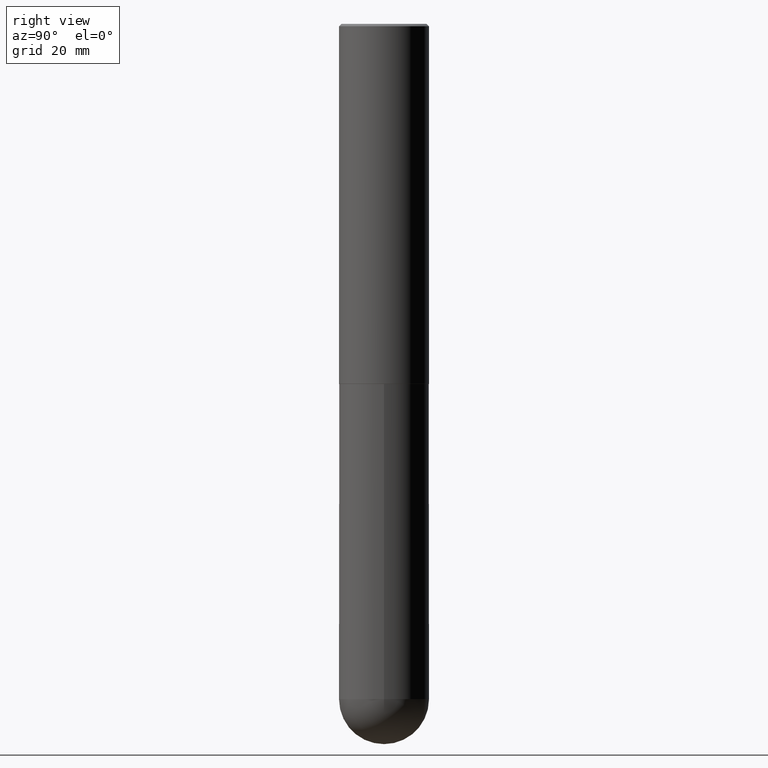
[diagram: clean part render]
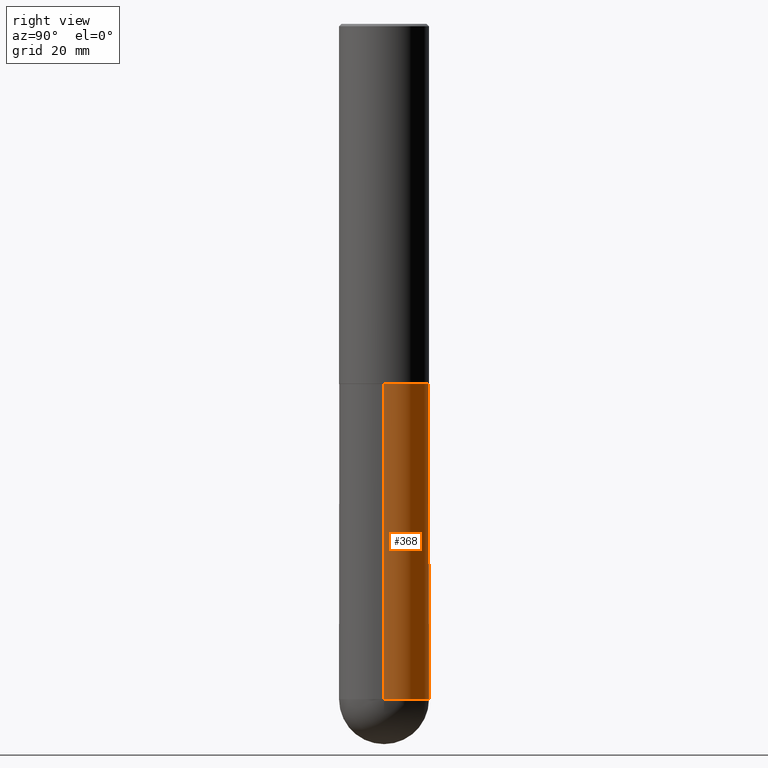
[diagram: same view with one face highlighted and labeled with its STEP entity id]
A machine part, right view. The second image highlights one B-rep face of the part: STEP entity #368.
In plain terms, the highlighted cylindrical surface (partial cylindrical patch) has radius 9.525 mm, axis along (-0, 0, 1).
Its self-contained STEP definition (entity closure, byte-faithful):
#2 = CARTESIAN_POINT ( 'NONE',  ( 0.3750000000000001110, -1.767562427789342178E-14, -5.625000000000000000 ) ) ;
#5 = VERTEX_POINT ( 'NONE', #10 ) ;
#10 = CARTESIAN_POINT ( 'NONE',  ( 2.618611004132489250E-15, 0.3749999999999805711, -5.625000000000000888 ) ) ;
#13 = DIRECTION ( 'NONE',  ( -2.445468806185136597E-29, 3.491481338843145583E-15, 1.000000000000000000 ) ) ;
#27 = AXIS2_PLACEMENT_3D ( 'NONE', #107, #82, #138 ) ;
#48 = FACE_OUTER_BOUND ( 'NONE', #412, .T. ) ;
#49 = EDGE_CURVE ( 'NONE', #5, #68, #400, .T. ) ;
#55 = DIRECTION ( 'NONE',  ( -2.445468806185136597E-29, 3.491481338843145583E-15, 1.000000000000000000 ) ) ;
#68 = VERTEX_POINT ( 'NONE', #327 ) ;
#74 = DIRECTION ( 'NONE',  ( 1.000000000000000000, -6.982962677686265922E-15, 4.876176775795935793E-29 ) ) ;
#76 = VECTOR ( 'NONE', #383, 39.37007874015748143 ) ;
#80 = CARTESIAN_POINT ( 'NONE',  ( 1.375576203479139336E-28, -1.963958253099269612E-14, -5.625000000000000000 ) ) ;
#81 = CARTESIAN_POINT ( 'NONE',  ( -0.3750000000000000555, -1.239247801466068975E-14, -3.000000000000000444 ) ) ;
#82 = DIRECTION ( 'NONE',  ( -2.445468806185136597E-29, 3.491481338843145583E-15, 1.000000000000000000 ) ) ;
#98 = ORIENTED_EDGE ( 'NONE', *, *, #374, .T. ) ;
#106 = LINE ( 'NONE', #286, #366 ) ;
#107 = CARTESIAN_POINT ( 'NONE',  ( 7.336406418555409790E-29, -1.047444401652943635E-14, -3.000000000000000444 ) ) ;
#108 = EDGE_CURVE ( 'NONE', #123, #378, #196, .T. ) ;
#123 = VERTEX_POINT ( 'NONE', #320 ) ;
#135 = CIRCLE ( 'NONE', #336, 0.3750000000000001110 ) ;
#138 = DIRECTION ( 'NONE',  ( 1.000000000000000000, -6.982962677686266711E-15, 0.000000000000000000 ) ) ;
#149 = ORIENTED_EDGE ( 'NONE', *, *, #49, .T. ) ;
#168 = CYLINDRICAL_SURFACE ( 'NONE', #376, 0.3750000000000001110 ) ;
#172 = DIRECTION ( 'NONE',  ( 1.000000000000000000, -6.982962677686270655E-15, 0.000000000000000000 ) ) ;
#184 = DIRECTION ( 'NONE',  ( -2.445468806185136597E-29, 3.491481338843145583E-15, 1.000000000000000000 ) ) ;
#195 = DIRECTION ( 'NONE',  ( -2.445468806185136877E-29, 3.491481338843145188E-15, 1.000000000000000000 ) ) ;
#196 = CIRCLE ( 'NONE', #27, 0.3750000000000000555 ) ;
#209 = ORIENTED_EDGE ( 'NONE', *, *, #213, .F. ) ;
#213 = EDGE_CURVE ( 'NONE', #267, #123, #347, .T. ) ;
#252 = ORIENTED_EDGE ( 'NONE', *, *, #361, .T. ) ;
#267 = VERTEX_POINT ( 'NONE', #2 ) ;
#286 = CARTESIAN_POINT ( 'NONE',  ( -0.3750000000000001110, 2.664535259100376486E-15, -1.844600658845590159E-29 ) ) ;
#294 = AXIS2_PLACEMENT_3D ( 'NONE', #80, #184, #387 ) ;
#306 = ORIENTED_EDGE ( 'NONE', *, *, #108, .F. ) ;
#320 = CARTESIAN_POINT ( 'NONE',  ( 0.3750000000000000555, -1.309305502066178795E-14, -3.000000000000000444 ) ) ;
#321 = CARTESIAN_POINT ( 'NONE',  ( 1.375576203479139336E-28, -1.963958253099269612E-14, -5.625000000000000000 ) ) ;
#327 = CARTESIAN_POINT ( 'NONE',  ( -0.3750000000000001110, -1.239247801466069291E-14, -5.625000000000000000 ) ) ;
#329 = CARTESIAN_POINT ( 'NONE',  ( 0.000000000000000000, 0.000000000000000000, 0.000000000000000000 ) ) ;
#336 = AXIS2_PLACEMENT_3D ( 'NONE', #321, #55, #172 ) ;
#347 = LINE ( 'NONE', #375, #76 ) ;
#361 = EDGE_CURVE ( 'NONE', #68, #378, #106, .T. ) ;
#366 = VECTOR ( 'NONE', #195, 39.37007874015748143 ) ;
#368 = ADVANCED_FACE ( 'NONE', ( #48 ), #168, .T. ) ;
#374 = EDGE_CURVE ( 'NONE', #267, #5, #135, .T. ) ;
#375 = CARTESIAN_POINT ( 'NONE',  ( 0.3750000000000001110, -2.618611004132350411E-15, 1.828566290923476483E-29 ) ) ;
#376 = AXIS2_PLACEMENT_3D ( 'NONE', #329, #13, #74 ) ;
#378 = VERTEX_POINT ( 'NONE', #81 ) ;
#383 = DIRECTION ( 'NONE',  ( -2.445468806185136877E-29, 3.491481338843145188E-15, 1.000000000000000000 ) ) ;
#387 = DIRECTION ( 'NONE',  ( 1.000000000000000000, -6.982962677686270655E-15, 0.000000000000000000 ) ) ;
#400 = CIRCLE ( 'NONE', #294, 0.3750000000000001110 ) ;
#412 = EDGE_LOOP ( 'NONE', ( #149, #252, #306, #209, #98 ) ) ;